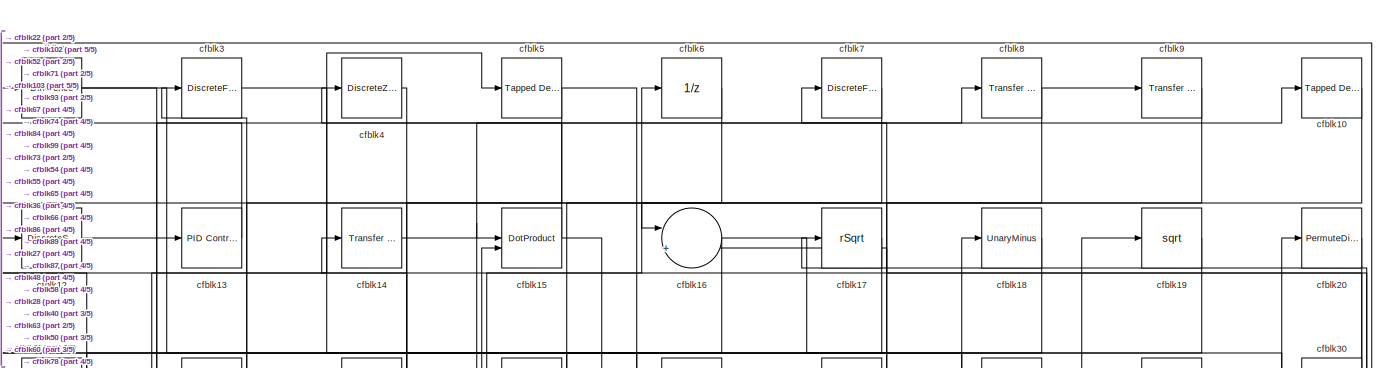
[diagram: root canvas - part 1/5, full width, top band]
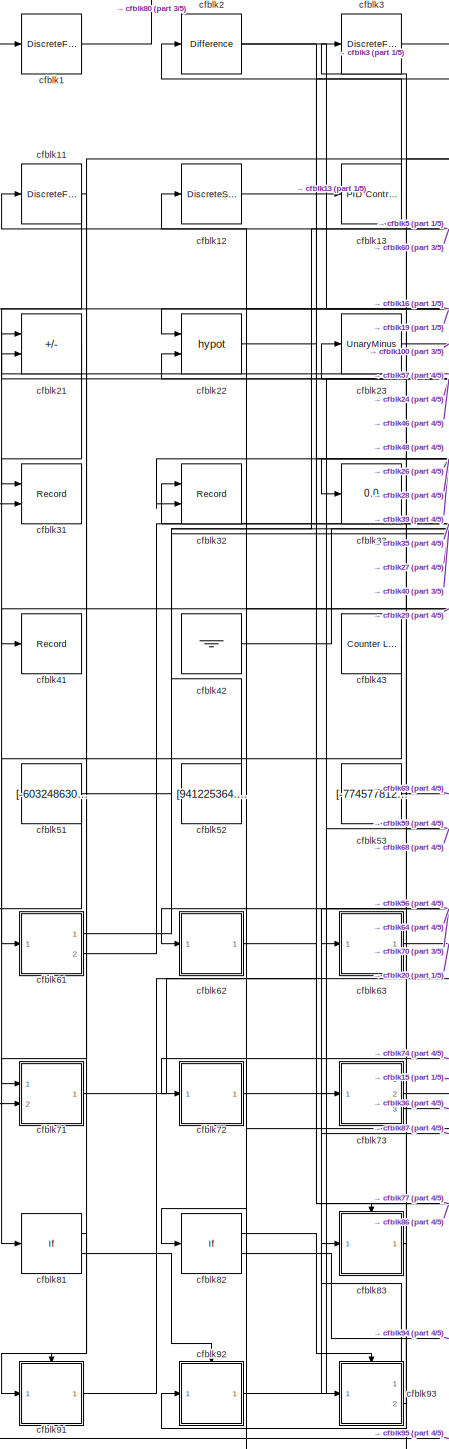
[diagram: root canvas - part 2/5, left side, full height]
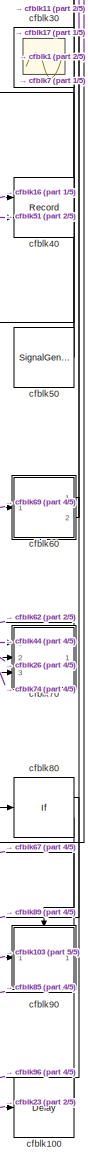
[diagram: root canvas - part 3/5, middle right region]
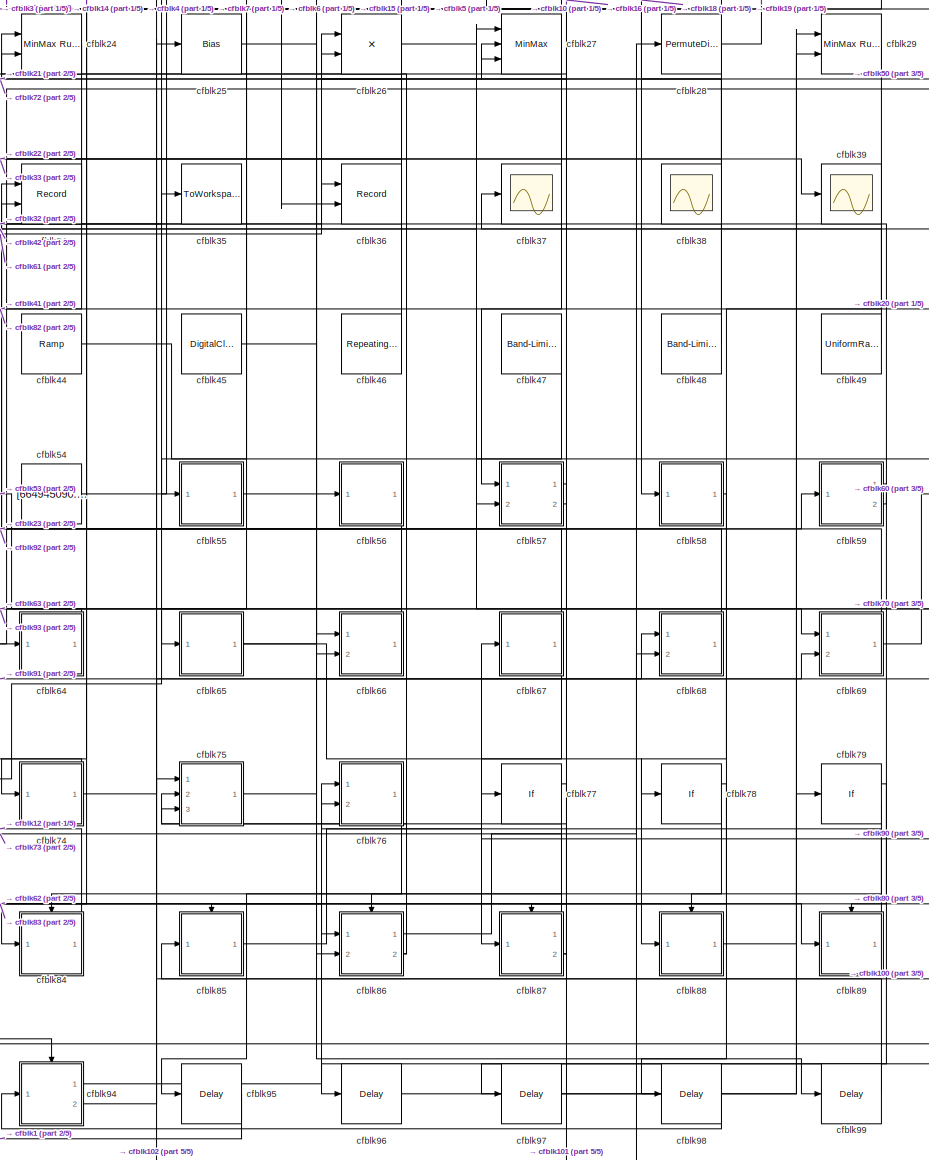
[diagram: root canvas - part 4/5, central region]
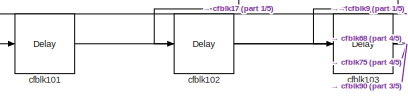
[diagram: root canvas - part 5/5, bottom left region]
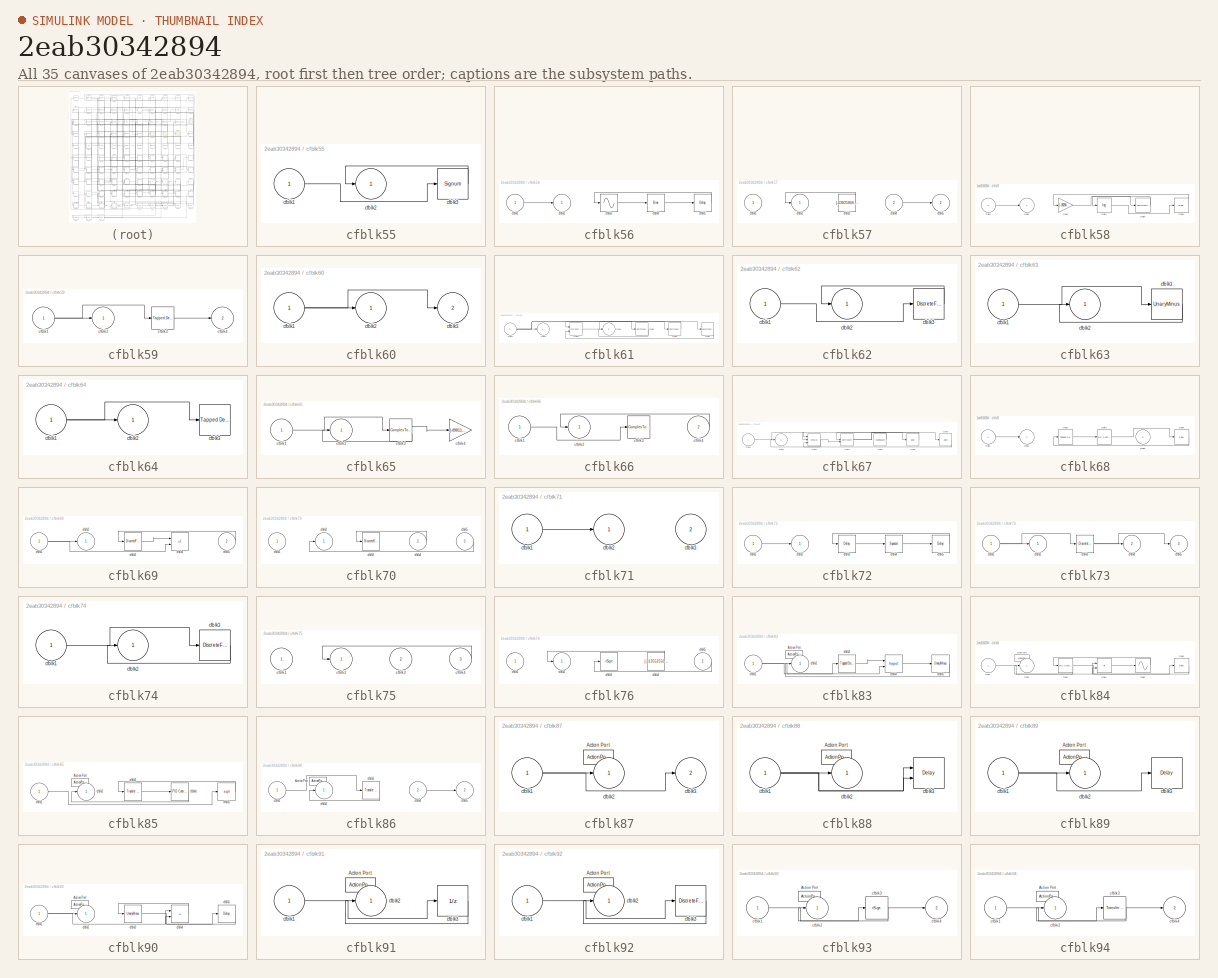
[diagram: thumbnail index - all 35 canvases of the model, root first then tree order]
MODEL slx_2eab30342894
KIND model
CONFIG AbsTol = auto
CONFIG EnableMultiTasking = off
CONFIG FixedStep = auto
CONFIG MaxStep = auto
CONFIG MinStep = auto
CONFIG RelTol = 1e-3
CONFIG SampleTimeConstraint = Unconstrained
CONFIG SolverName = VariableStepAuto
CONFIG StartTime = 0.0
CONFIG StopTime = 10.0
BLOCK [DiscreteFilter] cfblk1
  InputPortMap = u0
  Ports = [1, 1]
  SampleTime = 1
BLOCK [Reference] cfblk10  REF=simulink/Discrete/Tapped Delay
  Ports = [1, 1]
  SourceBlock = simulink/Discrete/Tapped Delay
  SourceProductBaseCode = SL
  SourceType = Tapped Delay Line
BLOCK [Delay] cfblk100
  InputPortMap = u0
  Ports = [1, 1]
  SampleTime = 1
BLOCK [Delay] cfblk101
  InputPortMap = u0
  Ports = [1, 1]
  SampleTime = 1
BLOCK [Delay] cfblk102
  InputPortMap = u0
  Ports = [1, 1]
  SampleTime = 1
BLOCK [Delay] cfblk103
  InputPortMap = u0
  Ports = [1, 1]
  SampleTime = 1
BLOCK [DiscreteFir] cfblk11
  InputPortMap = u0
  OutputPortMap = o0
  Ports = [1, 1]
  SampleTime = 1
BLOCK [DiscreteStateSpace] cfblk12
BLOCK [Reference] cfblk13  REF=slpidlib/PID Controller
  Ports = [1, 1]
  SourceBlock = slpidlib/PID Controller
  SourceProductBaseCode = SL
  SourceType = PID 1dof
BLOCK [Reference] cfblk14  REF=simulink/Discrete/Transfer Fcn
Real Zero
  Ports = [1, 1]
  SourceBlock = simulink/Discrete/Transfer Fcn\nReal Zero
  SourceProductBaseCode = SL
  SourceType = Transfer Fcn Real Zero
BLOCK [DotProduct] cfblk15
  OutDataTypeStr = Inherit: Inherit via internal rule
BLOCK [Sum] cfblk16
  Inputs = |++
  Ports = [2, 1]
BLOCK [Sqrt] cfblk17
  AlgorithmType = Newton-Raphson
  Operator = rSqrt
BLOCK [UnaryMinus] cfblk18
BLOCK [Sqrt] cfblk19
BLOCK [Reference] cfblk2  REF=simulink/Discrete/Difference
  Ports = [1, 1]
  SourceBlock = simulink/Discrete/Difference
  SourceProductBaseCode = SL
  SourceType = Difference
BLOCK [PermuteDimensions] cfblk20
BLOCK [Sum] cfblk21
  IconShape = rectangular
  Inputs = -+
  Ports = [2, 1]
BLOCK [Math] cfblk22
  Operator = hypot
  Ports = [2, 1]
BLOCK [UnaryMinus] cfblk23
BLOCK [Reference] cfblk24  REF=simulink/Math
Operations/MinMax
Running
Resettable
  Ports = [2, 1]
  SourceBlock = simulink/Math\nOperations/MinMax\nRunning\nResettable
  SourceProductBaseCode = SL
  SourceType = MinMax Running Resettable
BLOCK [Bias] cfblk25
  Bias = [894057722.997253]
  SaturateOnIntegerOverflow = off
BLOCK [Product] cfblk26
  Ports = [2, 1]
BLOCK [MinMax] cfblk27
  Inputs = 3
  Ports = [3, 1]
BLOCK [PermuteDimensions] cfblk28
BLOCK [Reference] cfblk29  REF=simulink/Math
Operations/MinMax
Running
Resettable
  Ports = [2, 1]
  SourceBlock = simulink/Math\nOperations/MinMax\nRunning\nResettable
  SourceProductBaseCode = SL
  SourceType = MinMax Running Resettable
BLOCK [DiscreteFilter] cfblk3
  InputPortMap = u0
  Ports = [1, 1]
  SampleTime = 1
BLOCK [Scope] cfblk30
  Floating = on
  NumInputPorts = 1
  Ports = []
BLOCK [Record] cfblk31
  CompatibilityTag = XY
  FileSettingsInternal = {"entries":[{"content":{"excelSettings":{"content":{},"type":"Streamout.ExcelSettings"}},"type":"Streamout.FileSettingStorage","uuid":"718c067a-28da-478a-a8fd-78f5a85174c0"}],"packageUris":["http://schema.mathworks.com/mf0/streamout_blocks/R2020a"],"version":"1.0"}
  Layout = [1 1]
  Ports = [2]
  SignalsInternal = {"entries":[{"content":{"signals":[{"content":{"blockPath":["sampleModel231/cfblk31"],"channel":[],"dimensions":[1],"domain":"sampleModel231/cfblk31","lineColor":"#a2142f","plots":[1],"port":1,"sid":[""],"signalID":9040,"signalName":"cfblk21"},"type":"RecordBlkView.Signal","uuid":"e302dfcd-d67c-4f50-8076-440cb3bd3f97"},{"content":{"blockPath":["sampleModel231/cfblk31"],"channel":[],"dimensions":[1...<+383ch>
  VisualizationBindings = {"xyplotplugin":{"info":[{"series":[{"bindingParametersList":[{"parameter":"X-Axis","signalID":9040,"signalName":"cfblk21"},{"parameter":"Y-Axis","signalID":9044,"signalName":"cfblk16"}],"seriesID":26669}],"subplotID":1}]}}
BLOCK [Record] cfblk32
  CompatibilityTag = XY
  FileSettingsInternal = {"entries":[{"content":{"excelSettings":{"content":{},"type":"Streamout.ExcelSettings"}},"type":"Streamout.FileSettingStorage","uuid":"5d0a9b7d-f03b-4554-ad57-92ecc4a6d858"}],"packageUris":["http://schema.mathworks.com/mf0/streamout_blocks/R2020a"],"version":"1.0"}
  Layout = [1 1]
  Ports = [2]
  SignalsInternal = {"entries":[{"content":{"signals":[{"content":{"blockPath":["sampleModel231/cfblk32"],"channel":[],"dimensions":[1],"domain":"sampleModel231/cfblk32","lineColor":"#a2142f","plots":[1],"port":1,"sid":[""],"signalID":9048,"signalName":"cfblk59:2"},"type":"RecordBlkView.Signal","uuid":"48f32938-313d-4d61-967c-50ca341d1833"},{"content":{"blockPath":["sampleModel231/cfblk32"],"channel":[],"dimensions":...<+387ch>
  VisualizationBindings = {"xyplotplugin":{"info":[{"series":[{"bindingParametersList":[{"parameter":"X-Axis","signalID":9048,"signalName":"cfblk59:2"},{"parameter":"Y-Axis","signalID":9052,"signalName":"cfblk28"}],"seriesID":63112}],"subplotID":1}]}}
BLOCK [Display] cfblk33
  Decimation = 1
  Ports = [1]
BLOCK [Record] cfblk34
  CompatibilityTag = XY
  FileSettingsInternal = {"entries":[{"content":{"excelSettings":{"content":{},"type":"Streamout.ExcelSettings"}},"type":"Streamout.FileSettingStorage","uuid":"20ac669e-4e50-4681-85e3-44150c326a29"}],"packageUris":["http://schema.mathworks.com/mf0/streamout_blocks/R2020a"],"version":"1.0"}
  Layout = [1 1]
  Ports = [2]
  SignalsInternal = {"entries":[{"content":{"signals":[{"content":{"blockPath":["sampleModel231/cfblk34"],"channel":[],"dimensions":[1],"domain":"sampleModel231/cfblk34","lineColor":"#a2142f","plots":[1],"port":1,"sid":[""],"signalID":9056,"signalName":"cfblk69"},"type":"RecordBlkView.Signal","uuid":"a9260963-9d32-4ac0-8d09-87a93b4e93bc"},{"content":{"blockPath":["sampleModel231/cfblk34"],"channel":[],"dimensions":[1...<+383ch>
  VisualizationBindings = {"xyplotplugin":{"info":[{"series":[{"bindingParametersList":[{"parameter":"X-Axis","signalID":9056,"signalName":"cfblk69"},{"parameter":"Y-Axis","signalID":9060,"signalName":"cfblk66"}],"seriesID":1144}],"subplotID":1}]}}
BLOCK [ToWorkspace] cfblk35
  FixptAsFi = on
  MaxDataPoints = inf
  Ports = [1]
  SampleTime = -1
  SaveFormat = Timeseries
  VariableName = xbbxzsd
BLOCK [Record] cfblk36
  CompatibilityTag = XY
  FileSettingsInternal = {"entries":[{"content":{"excelSettings":{"content":{},"type":"Streamout.ExcelSettings"}},"type":"Streamout.FileSettingStorage","uuid":"3a5956c7-4bb5-407e-85a2-568b988ab8fa"}],"packageUris":["http://schema.mathworks.com/mf0/streamout_blocks/R2020a"],"version":"1.0"}
  Layout = [1 1]
  Ports = [2]
  SignalsInternal = {"entries":[{"content":{"signals":[{"content":{"blockPath":["sampleModel231/cfblk36"],"channel":[],"dimensions":[1],"domain":"sampleModel231/cfblk36","lineColor":"#a2142f","plots":[1],"port":1,"sid":[""],"signalID":9064,"signalName":"cfblk73:3"},"type":"RecordBlkView.Signal","uuid":"974821d9-121e-472c-87fc-a18d3f113246"},{"content":{"blockPath":["sampleModel231/cfblk36"],"channel":[],"dimensions":...<+385ch>
  VisualizationBindings = {"xyplotplugin":{"info":[{"series":[{"bindingParametersList":[{"parameter":"X-Axis","signalID":9064,"signalName":"cfblk73:3"},{"parameter":"Y-Axis","signalID":9068,"signalName":"cfblk15"}],"seriesID":22973}],"subplotID":1}]}}
BLOCK [Scope] cfblk37
  Floating = off
  NumInputPorts = 1
  Ports = [1]
BLOCK [Scope] cfblk38
  Floating = on
  NumInputPorts = 1
  Ports = []
BLOCK [Scope] cfblk39
  Floating = off
  NumInputPorts = 1
  Ports = [1]
BLOCK [DiscreteZeroPole] cfblk4
  Gain = 1
  Poles = [0 0.5]
BLOCK [Record] cfblk40
  CompatibilityTag = XY
  FileSettingsInternal = {"entries":[{"content":{"excelSettings":{"content":{},"type":"Streamout.ExcelSettings"}},"type":"Streamout.FileSettingStorage","uuid":"2092d5b7-26cd-442d-9348-5b33e9bd109d"}],"packageUris":["http://schema.mathworks.com/mf0/streamout_blocks/R2020a"],"version":"1.0"}
  Layout = [1 1]
  Ports = [2]
  SignalsInternal = {"entries":[{"content":{"signals":[{"content":{"blockPath":["sampleModel231/cfblk40"],"channel":[],"dimensions":[1],"domain":"sampleModel231/cfblk40","lineColor":"#a2142f","plots":[1],"port":1,"sid":[""],"signalID":9072,"signalName":"cfblk16"},"type":"RecordBlkView.Signal","uuid":"d9b81a36-e1ec-4466-aef8-605108df900b"},{"content":{"blockPath":["sampleModel231/cfblk40"],"channel":[],"dimensions":[1...<+383ch>
  VisualizationBindings = {"xyplotplugin":{"info":[{"series":[{"bindingParametersList":[{"parameter":"X-Axis","signalID":9072,"signalName":"cfblk16"},{"parameter":"Y-Axis","signalID":9076,"signalName":"cfblk51"}],"seriesID":44291}],"subplotID":1}]}}
BLOCK [Record] cfblk41
  FileSettingsInternal = {"entries":[{"content":{"excelSettings":{"content":{},"type":"Streamout.ExcelSettings"}},"type":"Streamout.FileSettingStorage","uuid":"2bba29e6-f183-43ae-80bf-67660429d8b1"}],"packageUris":["http://schema.mathworks.com/mf0/streamout_blocks/R2020a"],"version":"1.0"}
  Ports = [1]
  SignalsInternal = {"entries":[{"content":{"signals":[{"content":{"blockPath":["sampleModel231/cfblk41"],"channel":[],"dimensions":[1],"domain":"sampleModel231/cfblk41","lineColor":"#4dbeee","plots":[1],"port":1,"sid":[""],"signalID":9080,"signalName":"cfblk24"},"type":"RecordBlkView.Signal","uuid":"c0617ff1-36d3-4f7c-b9d5-475ce653b315"}]},"type":"RecordBlkView.InputSignals","uuid":"8289bc26-1adb-4695-a242-cec44e19b...<+97ch>
  VisualizationBindings = {"sparklinesplugin":{"info":[{"bindingParametersList":[],"subplotID":1}]}}
BLOCK [Ground] cfblk42
BLOCK [Reference] cfblk43  REF=simulink/Sources/Counter
Limited
  Ports = [0, 1]
  SourceBlock = simulink/Sources/Counter\nLimited
  SourceProductBaseCode = SL
  SourceType = Counter Limited
BLOCK [Reference] cfblk44  REF=simulink/Sources/Ramp
  Ports = [0, 1]
  SourceBlock = simulink/Sources/Ramp
  SourceProductBaseCode = SL
  SourceType = Ramp
BLOCK [DigitalClock] cfblk45
BLOCK [Reference] cfblk46  REF=simulink/Sources/Repeating
Sequence
  Ports = [0, 1]
  SourceBlock = simulink/Sources/Repeating\nSequence
  SourceProductBaseCode = SL
  SourceType = Repeating table
BLOCK [Reference] cfblk47  REF=simulink/Sources/Band-Limited
White Noise
  Ports = [0, 1]
  SourceBlock = simulink/Sources/Band-Limited\nWhite Noise
  SourceProductBaseCode = SL
  SourceType = Band-Limited White Noise.
BLOCK [Reference] cfblk48  REF=simulink/Sources/Band-Limited
White Noise
  Ports = [0, 1]
  SourceBlock = simulink/Sources/Band-Limited\nWhite Noise
  SourceProductBaseCode = SL
  SourceType = Band-Limited White Noise.
BLOCK [UniformRandomNumber] cfblk49
  Maximum = [2798529614.135009]
  Minimum = [-9972385195.308111]
  SampleTime = 0.1
  Seed = [2850325.000000]
BLOCK [Reference] cfblk5  REF=simulink/Discrete/Tapped Delay
  Ports = [1, 1]
  SourceBlock = simulink/Discrete/Tapped Delay
  SourceProductBaseCode = SL
  SourceType = Tapped Delay Line
BLOCK [SignalGenerator] cfblk50
  Amplitude = [228724315.962348]
  Ports = [0, 1]
  Units = rad/sec
BLOCK [Constant] cfblk51
  SampleTime = 1
  Value = [-603248630.549254]
BLOCK [Constant] cfblk52
  SampleTime = 1
  Value = [941225364.088891]
BLOCK [Constant] cfblk53
  SampleTime = 1
  Value = [-774577812.339895]
BLOCK [Constant] cfblk54
  SampleTime = 1
  Value = [664945090.502333]
BLOCK [SubSystem] cfblk55
  Ports = [1, 1]
  RequestExecContextInheritance = off
BLOCK [Inport] cfblk55/cfblk1
BLOCK [Outport] cfblk55/cfblk2
BLOCK [Signum] cfblk55/cfblk3
BLOCK [SubSystem] cfblk56
  Ports = [1, 1]
  RequestExecContextInheritance = off
BLOCK [Inport] cfblk56/cfblk1
BLOCK [Outport] cfblk56/cfblk2
BLOCK [Sin] cfblk56/cfblk3
  Ports = [1, 1]
  SampleTime = 0
  TimeSource = Use external signal
BLOCK [Bias] cfblk56/cfblk4
  Bias = [-434475307.773345]
  SaturateOnIntegerOverflow = off
BLOCK [Delay] cfblk56/cfblk5
  InputPortMap = u0
  Ports = [1, 1]
  SampleTime = 1
BLOCK [SubSystem] cfblk57
  Ports = [2, 2]
  RequestExecContextInheritance = off
BLOCK [Inport] cfblk57/cfblk1
BLOCK [Outport] cfblk57/cfblk2
BLOCK [Constant] cfblk57/cfblk3
  SampleTime = 1
  Value = [-63825866.096834]
BLOCK [Inport] cfblk57/cfblk4
  Port = 2
BLOCK [Outport] cfblk57/cfblk5
  Port = 2
BLOCK [SubSystem] cfblk58
  Ports = [1, 1]
  RequestExecContextInheritance = off
BLOCK [Inport] cfblk58/cfblk1
BLOCK [Outport] cfblk58/cfblk2
BLOCK [Gain] cfblk58/cfblk3
  Gain = [-382946476.438630]
BLOCK [Math] cfblk58/cfblk4
  Operator = log
  Ports = [1, 1]
BLOCK [PermuteDimensions] cfblk58/cfblk5
BLOCK [Delay] cfblk58/cfblk6
  InputPortMap = u0
  Ports = [1, 1]
  SampleTime = 1
BLOCK [SubSystem] cfblk59
  Ports = [1, 2]
  RequestExecContextInheritance = off
BLOCK [Inport] cfblk59/cfblk1
BLOCK [Outport] cfblk59/cfblk2
BLOCK [Reference] cfblk59/cfblk3  REF=simulink/Discrete/Tapped Delay
  Ports = [1, 1]
  SourceBlock = simulink/Discrete/Tapped Delay
  SourceProductBaseCode = SL
  SourceType = Tapped Delay Line
BLOCK [Outport] cfblk59/cfblk4
  Port = 2
BLOCK [UnitDelay] cfblk6
  HasFrameUpgradeWarning = on
BLOCK [SubSystem] cfblk60
  Ports = [1, 2]
  RequestExecContextInheritance = off
BLOCK [Inport] cfblk60/cfblk1
BLOCK [Outport] cfblk60/cfblk2
BLOCK [Outport] cfblk60/cfblk3
  Port = 2
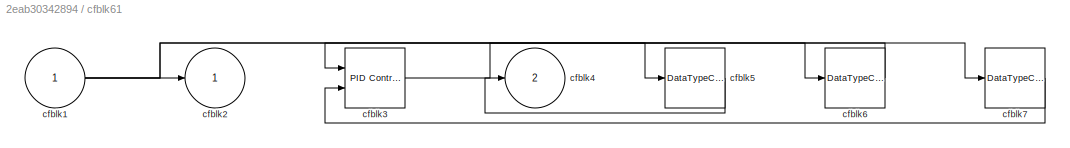
BLOCK [SubSystem] cfblk61
  Ports = [1, 2]
  RequestExecContextInheritance = off
BLOCK [Inport] cfblk61/cfblk1
BLOCK [Outport] cfblk61/cfblk2
BLOCK [Reference] cfblk61/cfblk3  REF=slpidlib/PID Controller (2DOF)
  Ports = [2, 1]
  SourceBlock = slpidlib/PID Controller (2DOF)
  SourceProductBaseCode = SL
  SourceType = PID 2dof
BLOCK [Outport] cfblk61/cfblk4
  Port = 2
BLOCK [DataTypeConversion] cfblk61/cfblk5
  RndMeth = Floor
  SaturateOnIntegerOverflow = off
BLOCK [DataTypeConversion] cfblk61/cfblk6
  RndMeth = Floor
  SaturateOnIntegerOverflow = off
BLOCK [DataTypeConversion] cfblk61/cfblk7
  RndMeth = Floor
  SaturateOnIntegerOverflow = off
BLOCK [SubSystem] cfblk62
  Ports = [1, 1]
  RequestExecContextInheritance = off
BLOCK [Inport] cfblk62/cfblk1
BLOCK [Outport] cfblk62/cfblk2
BLOCK [DiscreteFilter] cfblk62/cfblk3
  InputPortMap = u0
  Ports = [1, 1]
  SampleTime = 1
BLOCK [SubSystem] cfblk63
  Ports = [1, 1]
  RequestExecContextInheritance = off
BLOCK [Inport] cfblk63/cfblk1
BLOCK [Outport] cfblk63/cfblk2
BLOCK [UnaryMinus] cfblk63/cfblk3
BLOCK [SubSystem] cfblk64
  Ports = [1, 1]
  RequestExecContextInheritance = off
BLOCK [Inport] cfblk64/cfblk1
BLOCK [Outport] cfblk64/cfblk2
BLOCK [Reference] cfblk64/cfblk3  REF=simulink/Discrete/Tapped Delay
  Ports = [1, 1]
  SourceBlock = simulink/Discrete/Tapped Delay
  SourceProductBaseCode = SL
  SourceType = Tapped Delay Line
BLOCK [SubSystem] cfblk65
  Ports = [1, 1]
  RequestExecContextInheritance = off
BLOCK [Inport] cfblk65/cfblk1
BLOCK [Outport] cfblk65/cfblk2
BLOCK [ComplexToMagnitudeAngle] cfblk65/cfblk3
  Ports = [1, 2]
BLOCK [Gain] cfblk65/cfblk4
  Gain = [-498118981.806582]
BLOCK [SubSystem] cfblk66
  Ports = [2, 1]
  RequestExecContextInheritance = off
BLOCK [Inport] cfblk66/cfblk1
BLOCK [Outport] cfblk66/cfblk2
BLOCK [ComplexToMagnitudeAngle] cfblk66/cfblk3
  Ports = [1, 2]
BLOCK [Inport] cfblk66/cfblk4
  Port = 2
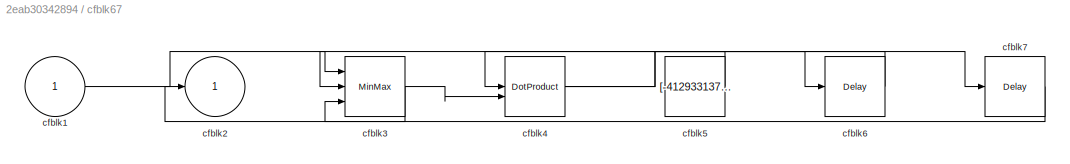
BLOCK [SubSystem] cfblk67
  Ports = [1, 1]
  RequestExecContextInheritance = off
BLOCK [Inport] cfblk67/cfblk1
BLOCK [Outport] cfblk67/cfblk2
BLOCK [MinMax] cfblk67/cfblk3
  Inputs = 3
  Ports = [3, 1]
BLOCK [DotProduct] cfblk67/cfblk4
  OutDataTypeStr = Inherit: Inherit via internal rule
BLOCK [Constant] cfblk67/cfblk5
  SampleTime = 1
  Value = [-412933137.887372]
BLOCK [Delay] cfblk67/cfblk6
  InputPortMap = u0
  Ports = [1, 1]
  SampleTime = 1
BLOCK [Delay] cfblk67/cfblk7
  InputPortMap = u0
  Ports = [1, 1]
  SampleTime = 1
BLOCK [SubSystem] cfblk68
  Ports = [2, 1]
  RequestExecContextInheritance = off
BLOCK [Inport] cfblk68/cfblk1
BLOCK [Outport] cfblk68/cfblk2
BLOCK [Reference] cfblk68/cfblk3  REF=simulink/Discrete/Tapped Delay
  Ports = [1, 1]
  SourceBlock = simulink/Discrete/Tapped Delay
  SourceProductBaseCode = SL
  SourceType = Tapped Delay Line
BLOCK [Reference] cfblk68/cfblk4  REF=slpidlib/PID Controller
  Ports = [1, 1]
  SourceBlock = slpidlib/PID Controller
  SourceProductBaseCode = SL
  SourceType = PID 1dof
BLOCK [Inport] cfblk68/cfblk5
  Port = 2
BLOCK [Delay] cfblk68/cfblk6
  InputPortMap = u0
  Ports = [1, 1]
  SampleTime = 1
BLOCK [SubSystem] cfblk69
  Ports = [2, 1]
  RequestExecContextInheritance = off
BLOCK [Inport] cfblk69/cfblk1
BLOCK [Outport] cfblk69/cfblk2
BLOCK [DiscreteFir] cfblk69/cfblk3
  InputPortMap = u0
  OutputPortMap = o0
  Ports = [1, 1]
  SampleTime = 1
BLOCK [Sum] cfblk69/cfblk4
  IconShape = rectangular
  Inputs = +-
  Ports = [2, 1]
BLOCK [Inport] cfblk69/cfblk5
  Port = 2
BLOCK [DiscreteFir] cfblk7
  InputPortMap = u0
  OutputPortMap = o0
  Ports = [1, 1]
  SampleTime = 1
BLOCK [SubSystem] cfblk70
  Ports = [3, 1]
  RequestExecContextInheritance = off
BLOCK [Inport] cfblk70/cfblk1
BLOCK [Outport] cfblk70/cfblk2
BLOCK [DiscreteStateSpace] cfblk70/cfblk3
BLOCK [Inport] cfblk70/cfblk4
  Port = 2
BLOCK [Inport] cfblk70/cfblk5
  Port = 3
BLOCK [SubSystem] cfblk71
  Ports = [2, 1]
  RequestExecContextInheritance = off
BLOCK [Inport] cfblk71/cfblk1
BLOCK [Outport] cfblk71/cfblk2
BLOCK [Inport] cfblk71/cfblk3
  Port = 2
BLOCK [SubSystem] cfblk72
  Ports = [1, 1]
  RequestExecContextInheritance = off
BLOCK [Inport] cfblk72/cfblk1
BLOCK [Outport] cfblk72/cfblk2
BLOCK [Delay] cfblk72/cfblk3
  InputPortMap = u0
  Ports = [1, 1]
  SampleTime = 1
BLOCK [Squeeze] cfblk72/cfblk4
BLOCK [Delay] cfblk72/cfblk5
  InputPortMap = u0
  Ports = [1, 1]
  SampleTime = 1
BLOCK [SubSystem] cfblk73
  Ports = [1, 3]
  RequestExecContextInheritance = off
BLOCK [Inport] cfblk73/cfblk1
BLOCK [Outport] cfblk73/cfblk2
BLOCK [DiscreteIntegrator] cfblk73/cfblk3
  ICPrevOutput = DiscIntNeverNeededParam
  ICPrevScaledInput = DiscIntNeverNeededParam
  InitialConditionSetting = Auto
  Ports = [1, 1]
BLOCK [Outport] cfblk73/cfblk4
  Port = 2
BLOCK [Outport] cfblk73/cfblk5
  Port = 3
BLOCK [SubSystem] cfblk74
  Ports = [1, 1]
  RequestExecContextInheritance = off
BLOCK [Inport] cfblk74/cfblk1
BLOCK [Outport] cfblk74/cfblk2
BLOCK [DiscreteFilter] cfblk74/cfblk3
  InputPortMap = u0
  Ports = [1, 1]
  SampleTime = 1
BLOCK [SubSystem] cfblk75
  Ports = [3, 1]
  RequestExecContextInheritance = off
BLOCK [Inport] cfblk75/cfblk1
BLOCK [Outport] cfblk75/cfblk2
BLOCK [Inport] cfblk75/cfblk3
  Port = 2
BLOCK [Inport] cfblk75/cfblk4
  Port = 3
BLOCK [SubSystem] cfblk76
  Ports = [2, 1]
  RequestExecContextInheritance = off
BLOCK [Inport] cfblk76/cfblk1
BLOCK [Outport] cfblk76/cfblk2
BLOCK [Sqrt] cfblk76/cfblk3
  AlgorithmType = Newton-Raphson
  Operator = rSqrt
BLOCK [Constant] cfblk76/cfblk4
  SampleTime = 1
  Value = [-313552550.865385]
BLOCK [Inport] cfblk76/cfblk5
  Port = 2
BLOCK [If] cfblk77
  IfExpression = u1 >= 0
  Ports = [1, 2]
  SampleTime = 1
BLOCK [If] cfblk78
  IfExpression = u1 >= 0
  Ports = [1, 2]
  SampleTime = 1
BLOCK [If] cfblk79
  IfExpression = u1 >= 0
  Ports = [1, 2]
  SampleTime = 1
BLOCK [Reference] cfblk8  REF=simulink/Discrete/Transfer Fcn
Lead or Lag
  Ports = [1, 1]
  SourceBlock = simulink/Discrete/Transfer Fcn\nLead or Lag
  SourceProductBaseCode = SL
  SourceType = Lead or Lag Compensator
BLOCK [If] cfblk80
  IfExpression = u1 >= 0
  Ports = [1, 2]
  SampleTime = 1
BLOCK [If] cfblk81
  IfExpression = u1 >= 0
  Ports = [1, 2]
  SampleTime = 1
BLOCK [If] cfblk82
  IfExpression = u1 >= 0
  Ports = [1, 2]
  SampleTime = 1
BLOCK [SubSystem] cfblk83
  Ports = [1, 1, 0, 0, 0, 0, 0, 1]
  RequestExecContextInheritance = off
  TreatAsAtomicUnit = on
BLOCK [ActionPort] cfblk83/Action Port
  ActionPortLabel = if(u1 >= 0)
BLOCK [Inport] cfblk83/cfblk1
BLOCK [Outport] cfblk83/cfblk2
BLOCK [Reference] cfblk83/cfblk3  REF=simulink/Discrete/Tapped Delay
  Ports = [1, 1]
  SourceBlock = simulink/Discrete/Tapped Delay
  SourceProductBaseCode = SL
  SourceType = Tapped Delay Line
BLOCK [Math] cfblk83/cfblk4
  Operator = hypot
  Ports = [2, 1]
BLOCK [UnaryMinus] cfblk83/cfblk5
BLOCK [SubSystem] cfblk84
  Ports = [1, 1, 0, 0, 0, 0, 0, 1]
  RequestExecContextInheritance = off
  TreatAsAtomicUnit = on
BLOCK [ActionPort] cfblk84/Action Port
  ActionPortLabel = else
BLOCK [Inport] cfblk84/cfblk1
BLOCK [Outport] cfblk84/cfblk2
BLOCK [Reference] cfblk84/cfblk3  REF=slpidlib/PID Controller
  Ports = [1, 1]
  SourceBlock = slpidlib/PID Controller
  SourceProductBaseCode = SL
  SourceType = PID 1dof
BLOCK [Product] cfblk84/cfblk4
  Ports = [2, 1]
BLOCK [Sin] cfblk84/cfblk5
  Ports = [1, 1]
  SampleTime = 0
  TimeSource = Use external signal
BLOCK [Delay] cfblk84/cfblk6
  InputPortMap = u0
  Ports = [1, 1]
BLOCK [SubSystem] cfblk85
  Ports = [1, 1, 0, 0, 0, 0, 0, 1]
  RequestExecContextInheritance = off
  TreatAsAtomicUnit = on
BLOCK [ActionPort] cfblk85/Action Port
  ActionPortLabel = if(u1 >= 0)
BLOCK [Inport] cfblk85/cfblk1
BLOCK [Outport] cfblk85/cfblk2
BLOCK [Reference] cfblk85/cfblk3  REF=simulink/Discrete/Transfer Fcn
First Order
  Ports = [1, 1]
  SourceBlock = simulink/Discrete/Transfer Fcn\nFirst Order
  SourceProductBaseCode = SL
  SourceType = First Order Transfer Fcn
BLOCK [Reference] cfblk85/cfblk4  REF=slpidlib/PID Controller
  Ports = [1, 1]
  SourceBlock = slpidlib/PID Controller
  SourceProductBaseCode = SL
  SourceType = PID 1dof
BLOCK [Sqrt] cfblk85/cfblk5
BLOCK [SubSystem] cfblk86
  Ports = [2, 2, 0, 0, 0, 0, 0, 1]
  RequestExecContextInheritance = off
  TreatAsAtomicUnit = on
BLOCK [ActionPort] cfblk86/Action Port
  ActionPortLabel = else
BLOCK [Inport] cfblk86/cfblk1
BLOCK [Outport] cfblk86/cfblk2
BLOCK [Reference] cfblk86/cfblk3  REF=simulink/Discrete/Transfer Fcn
First Order
  Ports = [1, 1]
  SourceBlock = simulink/Discrete/Transfer Fcn\nFirst Order
  SourceProductBaseCode = SL
  SourceType = First Order Transfer Fcn
BLOCK [Inport] cfblk86/cfblk4
  Port = 2
BLOCK [Outport] cfblk86/cfblk5
  Port = 2
BLOCK [SubSystem] cfblk87
  Ports = [1, 2, 0, 0, 0, 0, 0, 1]
  RequestExecContextInheritance = off
  TreatAsAtomicUnit = on
BLOCK [ActionPort] cfblk87/Action Port
  ActionPortLabel = if(u1 >= 0)
BLOCK [Inport] cfblk87/cfblk1
BLOCK [Outport] cfblk87/cfblk2
BLOCK [Outport] cfblk87/cfblk3
  Port = 2
BLOCK [SubSystem] cfblk88
  Ports = [1, 1, 0, 0, 0, 0, 0, 1]
  RequestExecContextInheritance = off
  TreatAsAtomicUnit = on
BLOCK [ActionPort] cfblk88/Action Port
  ActionPortLabel = else
BLOCK [Inport] cfblk88/cfblk1
BLOCK [Outport] cfblk88/cfblk2
BLOCK [Delay] cfblk88/cfblk3
  DelayLengthSource = Input port
  InputPortMap = u0,p1
  Ports = [2, 1]
BLOCK [SubSystem] cfblk89
  Ports = [1, 1, 0, 0, 0, 0, 0, 1]
  RequestExecContextInheritance = off
  TreatAsAtomicUnit = on
BLOCK [ActionPort] cfblk89/Action Port
  ActionPortLabel = if(u1 >= 0)
BLOCK [Inport] cfblk89/cfblk1
BLOCK [Outport] cfblk89/cfblk2
BLOCK [Delay] cfblk89/cfblk3
  InputPortMap = u0
  Ports = [1, 1]
BLOCK [Reference] cfblk9  REF=simulink/Discrete/Transfer Fcn
Real Zero
  Ports = [1, 1]
  SourceBlock = simulink/Discrete/Transfer Fcn\nReal Zero
  SourceProductBaseCode = SL
  SourceType = Transfer Fcn Real Zero
BLOCK [SubSystem] cfblk90
  Ports = [1, 1, 0, 0, 0, 0, 0, 1]
  RequestExecContextInheritance = off
  TreatAsAtomicUnit = on
BLOCK [ActionPort] cfblk90/Action Port
  ActionPortLabel = else
BLOCK [Inport] cfblk90/cfblk1
BLOCK [Outport] cfblk90/cfblk2
BLOCK [UnaryMinus] cfblk90/cfblk3
BLOCK [Sum] cfblk90/cfblk4
  IconShape = rectangular
  Ports = [2, 1]
BLOCK [Delay] cfblk90/cfblk5
  InputPortMap = u0
  Ports = [1, 1]
BLOCK [SubSystem] cfblk91
  Ports = [1, 1, 0, 0, 0, 0, 0, 1]
  RequestExecContextInheritance = off
  TreatAsAtomicUnit = on
BLOCK [ActionPort] cfblk91/Action Port
  ActionPortLabel = if(u1 >= 0)
BLOCK [Inport] cfblk91/cfblk1
BLOCK [Outport] cfblk91/cfblk2
BLOCK [UnitDelay] cfblk91/cfblk3
  HasFrameUpgradeWarning = on
  SampleTime = -1
BLOCK [SubSystem] cfblk92
  Ports = [1, 1, 0, 0, 0, 0, 0, 1]
  RequestExecContextInheritance = off
  TreatAsAtomicUnit = on
BLOCK [ActionPort] cfblk92/Action Port
  ActionPortLabel = else
BLOCK [Inport] cfblk92/cfblk1
BLOCK [Outport] cfblk92/cfblk2
BLOCK [DiscreteFir] cfblk92/cfblk3
  InputPortMap = u0
  OutputPortMap = o0
  Ports = [1, 1]
BLOCK [SubSystem] cfblk93
  Ports = [1, 2, 0, 0, 0, 0, 0, 1]
  RequestExecContextInheritance = off
  TreatAsAtomicUnit = on
BLOCK [ActionPort] cfblk93/Action Port
  ActionPortLabel = if(u1 >= 0)
BLOCK [Inport] cfblk93/cfblk1
BLOCK [Outport] cfblk93/cfblk2
BLOCK [Sqrt] cfblk93/cfblk3
  AlgorithmType = Newton-Raphson
  Operator = rSqrt
BLOCK [Outport] cfblk93/cfblk4
  Port = 2
BLOCK [SubSystem] cfblk94
  Ports = [1, 2, 0, 0, 0, 0, 0, 1]
  RequestExecContextInheritance = off
  TreatAsAtomicUnit = on
BLOCK [ActionPort] cfblk94/Action Port
  ActionPortLabel = else
BLOCK [Inport] cfblk94/cfblk1
BLOCK [Outport] cfblk94/cfblk2
BLOCK [Reference] cfblk94/cfblk3  REF=simulink/Discrete/Transfer Fcn
First Order
  Ports = [1, 1]
  SourceBlock = simulink/Discrete/Transfer Fcn\nFirst Order
  SourceProductBaseCode = SL
  SourceType = First Order Transfer Fcn
BLOCK [Outport] cfblk94/cfblk4
  Port = 2
BLOCK [Delay] cfblk95
  InputPortMap = u0
  Ports = [1, 1]
  SampleTime = 1
BLOCK [Delay] cfblk96
  InputPortMap = u0
  Ports = [1, 1]
  SampleTime = 1
BLOCK [Delay] cfblk97
  InputPortMap = u0
  Ports = [1, 1]
  SampleTime = 1
BLOCK [Delay] cfblk98
  InputPortMap = u0
  Ports = [1, 1]
  SampleTime = 1
BLOCK [Delay] cfblk99
  InputPortMap = u0
  Ports = [1, 1]
  SampleTime = 1
LINE cfblk100:1 -> cfblk85:1
LINE cfblk101:1 -> cfblk68:2
LINE cfblk102:1 -> cfblk75:1
LINE cfblk103:1 -> cfblk90:1
LINE cfblk10:1 -> cfblk27:2
NET cfblk11:1 -> cfblk81:1, cfblk91:1
LINE cfblk12:1 -> cfblk10:1
LINE cfblk13:1 -> cfblk2:1
LINE cfblk14:1 -> cfblk8:1
NET cfblk15:1 -> cfblk36:2, cfblk4:1
NET cfblk16:1 -> cfblk31:2, cfblk40:1
LINE cfblk17:1 -> cfblk102:1
LINE cfblk18:1 -> cfblk55:1
LINE cfblk19:1 -> cfblk22:1
LINE cfblk1:1 -> cfblk80:1
LINE cfblk20:1 -> cfblk78:1
LINE cfblk21:1 -> cfblk31:1
LINE cfblk22:1 -> cfblk39:1
LINE cfblk23:1 -> cfblk100:1
LINE cfblk24:1 -> cfblk41:1
LINE cfblk25:1 -> cfblk99:1
NET cfblk26:1 -> cfblk33:1, cfblk70:2
LINE cfblk27:1 -> cfblk57:1
NET cfblk28:1 -> cfblk19:1, cfblk32:2
LINE cfblk29:1 -> cfblk82:1
NET cfblk2:1 -> cfblk66:1, cfblk86:2
LINE cfblk3:1 -> cfblk58:1
LINE cfblk42:1 -> cfblk27:1
LINE cfblk43:1 -> cfblk61:1
LINE cfblk44:1 -> cfblk70:1
LINE cfblk45:1 -> cfblk66:2
LINE cfblk46:1 -> cfblk22:2
LINE cfblk47:1 -> cfblk57:2
NET cfblk48:1 -> cfblk18:1, cfblk21:2
LINE cfblk49:1 -> cfblk37:1
LINE cfblk4:1 -> cfblk74:1
NET cfblk50:1 -> cfblk26:1, cfblk7:1
NET cfblk51:1 -> cfblk40:2, cfblk71:2
LINE cfblk52:1 -> cfblk5:1
LINE cfblk53:1 -> cfblk69:1
LINE cfblk54:1 -> cfblk6:1
LINE cfblk55/cfblk1:1 -> cfblk55/cfblk3:1
LINE cfblk55/cfblk3:1 -> cfblk55/cfblk2:1
LINE cfblk55:1 -> cfblk56:1
LINE cfblk56/cfblk1:1 -> cfblk56/cfblk2:1
LINE cfblk56/cfblk3:1 -> cfblk56/cfblk4:1
LINE cfblk56/cfblk4:1 -> cfblk56/cfblk5:1
LINE cfblk56/cfblk5:1 -> cfblk56/cfblk3:1
LINE cfblk56:1 -> cfblk93:1
LINE cfblk57/cfblk3:1 -> cfblk57/cfblk2:1
LINE cfblk57/cfblk4:1 -> cfblk57/cfblk5:1
LINE cfblk57:1 -> cfblk101:1
LINE cfblk57:2 -> cfblk21:1
LINE cfblk58/cfblk1:1 -> cfblk58/cfblk2:1
LINE cfblk58/cfblk3:1 -> cfblk58/cfblk5:1
LINE cfblk58/cfblk4:1 -> cfblk58/cfblk6:1
LINE cfblk58/cfblk5:1 -> cfblk58/cfblk4:1
LINE cfblk58/cfblk6:1 -> cfblk58/cfblk3:1
LINE cfblk58:1 -> cfblk98:1
NET cfblk59/cfblk1:1 -> cfblk59/cfblk2:1, cfblk59/cfblk3:1
LINE cfblk59/cfblk3:1 -> cfblk59/cfblk4:1
LINE cfblk59:1 -> cfblk97:1
LINE cfblk59:2 -> cfblk32:1
NET cfblk5:1 -> cfblk71:1, cfblk89:1
NET cfblk60/cfblk1:1 -> cfblk60/cfblk2:1, cfblk60/cfblk3:1
LINE cfblk60:1 -> cfblk96:1
NET cfblk60:2 -> cfblk11:1, cfblk17:1
NET cfblk61/cfblk1:1 -> cfblk61/cfblk2:1, cfblk61/cfblk6:1, cfblk61/cfblk7:1
LINE cfblk61/cfblk3:1 -> cfblk61/cfblk5:1
LINE cfblk61/cfblk5:1 -> cfblk61/cfblk4:1
LINE cfblk61/cfblk6:1 -> cfblk61/cfblk3:1
LINE cfblk61/cfblk7:1 -> cfblk61/cfblk3:2
LINE cfblk61:1 -> cfblk26:2
LINE cfblk61:2 -> cfblk35:1
LINE cfblk62/cfblk1:1 -> cfblk62/cfblk3:1
LINE cfblk62/cfblk3:1 -> cfblk62/cfblk2:1
LINE cfblk62:1 -> cfblk86:1
LINE cfblk63/cfblk1:1 -> cfblk63/cfblk3:1
LINE cfblk63/cfblk3:1 -> cfblk63/cfblk2:1
LINE cfblk63:1 -> cfblk20:1
NET cfblk64/cfblk1:1 -> cfblk64/cfblk2:1, cfblk64/cfblk3:1
LINE cfblk64:1 -> cfblk63:1
LINE cfblk65/cfblk1:1 -> cfblk65/cfblk3:1
LINE cfblk65/cfblk3:1 -> cfblk65/cfblk4:1
LINE cfblk65/cfblk3:2 -> cfblk65/cfblk2:1
NET cfblk65:1 -> cfblk27:3, cfblk88:1
LINE cfblk66/cfblk1:1 -> cfblk66/cfblk3:1
LINE cfblk66/cfblk4:1 -> cfblk66/cfblk2:1
LINE cfblk66:1 -> cfblk34:2
LINE cfblk67/cfblk1:1 -> cfblk67/cfblk3:1
NET cfblk67/cfblk3:1 -> cfblk67/cfblk2:1, cfblk67/cfblk4:2
NET cfblk67/cfblk4:1 -> cfblk67/cfblk6:1, cfblk67/cfblk7:1
LINE cfblk67/cfblk5:1 -> cfblk67/cfblk4:1
LINE cfblk67/cfblk6:1 -> cfblk67/cfblk3:2
LINE cfblk67/cfblk7:1 -> cfblk67/cfblk3:3
NET cfblk67:1 -> cfblk14:1, cfblk87:1
LINE cfblk68/cfblk1:1 -> cfblk68/cfblk2:1
LINE cfblk68/cfblk3:1 -> cfblk68/cfblk4:1
LINE cfblk68/cfblk4:1 -> cfblk68/cfblk6:1
LINE cfblk68/cfblk6:1 -> cfblk68/cfblk3:1
LINE cfblk68:1 -> cfblk23:1
NET cfblk69/cfblk1:1 -> cfblk69/cfblk2:1, cfblk69/cfblk4:2
LINE cfblk69/cfblk3:1 -> cfblk69/cfblk4:1
LINE cfblk69/cfblk5:1 -> cfblk69/cfblk3:1
NET cfblk69:1 -> cfblk34:1, cfblk60:1
LINE cfblk6:1 -> cfblk65:1
LINE cfblk70/cfblk4:1 -> cfblk70/cfblk3:1
LINE cfblk70/cfblk5:1 -> cfblk70/cfblk2:1
LINE cfblk70:1 -> cfblk62:1
LINE cfblk71/cfblk1:1 -> cfblk71/cfblk2:1
LINE cfblk71:1 -> cfblk13:1
LINE cfblk72/cfblk1:1 -> cfblk72/cfblk2:1
LINE cfblk72/cfblk3:1 -> cfblk72/cfblk4:1
LINE cfblk72/cfblk4:1 -> cfblk72/cfblk5:1
LINE cfblk72/cfblk5:1 -> cfblk72/cfblk3:1
LINE cfblk72:1 -> cfblk24:1
NET cfblk73/cfblk1:1 -> cfblk73/cfblk2:1, cfblk73/cfblk3:1
NET cfblk73/cfblk3:1 -> cfblk73/cfblk4:1, cfblk73/cfblk5:1
LINE cfblk73:1 -> cfblk15:2
LINE cfblk73:2 -> cfblk64:1
LINE cfblk73:3 -> cfblk36:1
LINE cfblk74/cfblk1:1 -> cfblk74/cfblk3:1
LINE cfblk74/cfblk3:1 -> cfblk74/cfblk2:1
NET cfblk74:1 -> cfblk70:3, cfblk72:1
LINE cfblk75/cfblk4:1 -> cfblk75/cfblk2:1
LINE cfblk75:1 -> cfblk69:2
LINE cfblk76/cfblk4:1 -> cfblk76/cfblk2:1
LINE cfblk76/cfblk5:1 -> cfblk76/cfblk3:1
LINE cfblk76:1 -> cfblk95:1
LINE cfblk77:1 -> cfblk83:ifaction
LINE cfblk77:2 -> cfblk84:ifaction
LINE cfblk78:1 -> cfblk85:ifaction
LINE cfblk78:2 -> cfblk86:ifaction
LINE cfblk79:1 -> cfblk87:ifaction
LINE cfblk79:2 -> cfblk88:ifaction
LINE cfblk7:1 -> cfblk84:1
LINE cfblk80:1 -> cfblk89:ifaction
LINE cfblk80:2 -> cfblk90:ifaction
LINE cfblk81:1 -> cfblk91:ifaction
LINE cfblk81:2 -> cfblk92:ifaction
LINE cfblk82:1 -> cfblk93:ifaction
LINE cfblk82:2 -> cfblk94:ifaction
NET cfblk83/cfblk1:1 -> cfblk83/cfblk3:1, cfblk83/cfblk4:2
LINE cfblk83/cfblk3:1 -> cfblk83/cfblk4:1
LINE cfblk83/cfblk4:1 -> cfblk83/cfblk5:1
LINE cfblk83/cfblk5:1 -> cfblk83/cfblk2:1
LINE cfblk83:1 -> cfblk92:1
LINE cfblk84/cfblk1:1 -> cfblk84/cfblk4:1
NET cfblk84/cfblk3:1 -> cfblk84/cfblk2:1, cfblk84/cfblk6:1
LINE cfblk84/cfblk4:1 -> cfblk84/cfblk5:1
LINE cfblk84/cfblk5:1 -> cfblk84/cfblk3:1
LINE cfblk84/cfblk6:1 -> cfblk84/cfblk4:2
LINE cfblk84:1 -> cfblk12:1
LINE cfblk85/cfblk1:1 -> cfblk85/cfblk5:1
LINE cfblk85/cfblk3:1 -> cfblk85/cfblk4:1
LINE cfblk85/cfblk4:1 -> cfblk85/cfblk2:1
LINE cfblk85/cfblk5:1 -> cfblk85/cfblk3:1
LINE cfblk85:1 -> cfblk77:1
LINE cfblk86/cfblk1:1 -> cfblk86/cfblk3:1
LINE cfblk86/cfblk3:1 -> cfblk86/cfblk2:1
LINE cfblk86/cfblk4:1 -> cfblk86/cfblk5:1
LINE cfblk86:1 -> cfblk28:1
NET cfblk86:2 -> cfblk24:2, cfblk75:3
NET cfblk87/cfblk1:1 -> cfblk87/cfblk2:1, cfblk87/cfblk3:1
LINE cfblk87:1 -> cfblk73:1
NET cfblk87:2 -> cfblk16:2, cfblk75:2
NET cfblk88/cfblk1:1 -> cfblk88/cfblk2:1, cfblk88/cfblk3:1, cfblk88/cfblk3:2
LINE cfblk88:1 -> cfblk29:2
NET cfblk89/cfblk1:1 -> cfblk89/cfblk2:1, cfblk89/cfblk3:1
LINE cfblk89:1 -> cfblk76:2
NET cfblk8:1 -> cfblk16:1, cfblk9:1
NET cfblk90/cfblk1:1 -> cfblk90/cfblk2:1, cfblk90/cfblk4:1
LINE cfblk90/cfblk3:1 -> cfblk90/cfblk5:1
LINE cfblk90/cfblk4:1 -> cfblk90/cfblk3:1
LINE cfblk90/cfblk5:1 -> cfblk90/cfblk4:2
LINE cfblk90:1 -> cfblk67:1
LINE cfblk91/cfblk1:1 -> cfblk91/cfblk3:1
LINE cfblk91/cfblk3:1 -> cfblk91/cfblk2:1
LINE cfblk91:1 -> cfblk68:1
LINE cfblk92/cfblk1:1 -> cfblk92/cfblk3:1
LINE cfblk92/cfblk3:1 -> cfblk92/cfblk2:1
LINE cfblk92:1 -> cfblk59:1
LINE cfblk93/cfblk1:1 -> cfblk93/cfblk3:1
NET cfblk93/cfblk3:1 -> cfblk93/cfblk2:1, cfblk93/cfblk4:1
LINE cfblk93:1 -> cfblk83:1
LINE cfblk93:2 -> cfblk3:1
LINE cfblk94/cfblk1:1 -> cfblk94/cfblk3:1
NET cfblk94/cfblk3:1 -> cfblk94/cfblk2:1, cfblk94/cfblk4:1
LINE cfblk94:1 -> cfblk76:1
LINE cfblk94:2 -> cfblk25:1
LINE cfblk95:1 -> cfblk1:1
LINE cfblk96:1 -> cfblk79:1
LINE cfblk97:1 -> cfblk29:1
LINE cfblk98:1 -> cfblk94:1
LINE cfblk99:1 -> cfblk15:1
LINE cfblk9:1 -> cfblk103:1
note: NET lines group one-source signal fan-out (src -> all destinations, sorted); 1:1 wires keep LINE
